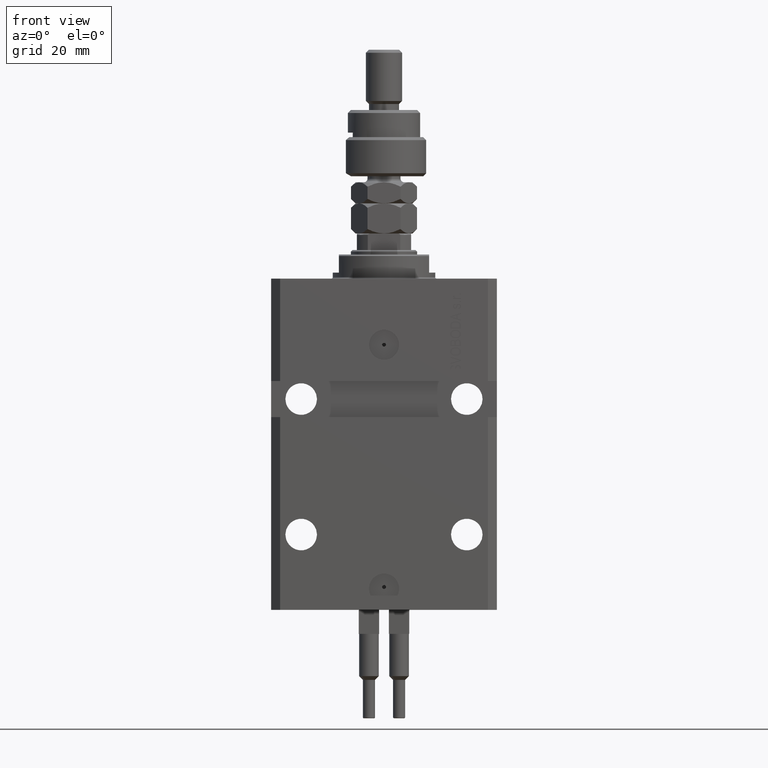
[diagram: clean part render]
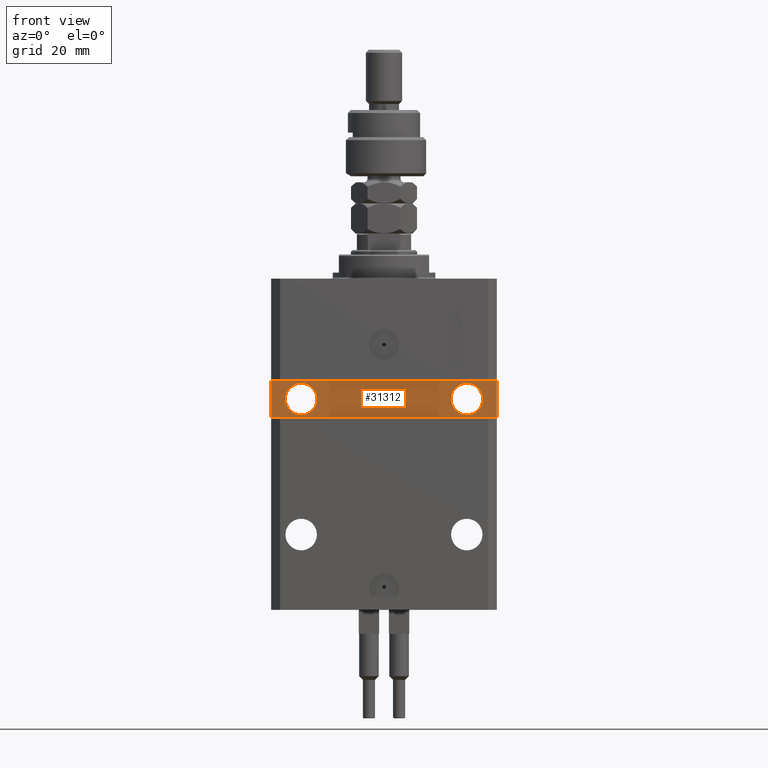
[diagram: same view with one face highlighted and labeled with its STEP entity id]
A machine part, front view. The second image highlights one B-rep face of the part: STEP entity #31312.
In plain terms, the highlighted planar face has unit normal (0, -1, 0).
Its self-contained STEP definition (entity closure, byte-faithful):
#1081 = DIRECTION ( 'NONE',  ( 9.251858538542974046E-17, -1.000000000000000000, 0.000000000000000000 ) ) ;
#1517 = EDGE_CURVE ( 'NONE', #9807, #25057, #38999, .T. ) ;
#2216 = DIRECTION ( 'NONE',  ( 1.000000000000000000, 0.000000000000000000, 0.000000000000000000 ) ) ;
#2295 = AXIS2_PLACEMENT_3D ( 'NONE', #20031, #27321, #47661 ) ;
#3354 = ORIENTED_EDGE ( 'NONE', *, *, #39210, .F. ) ;
#4444 = ORIENTED_EDGE ( 'NONE', *, *, #43168, .F. ) ;
#4843 = DIRECTION ( 'NONE',  ( 1.000000000000000000, 0.000000000000000000, 0.000000000000000000 ) ) ;
#5224 = CARTESIAN_POINT ( 'NONE',  ( -37.50000000000000000, -24.50000000000000000, -34.00000000000000000 ) ) ;
#5643 = CARTESIAN_POINT ( 'NONE',  ( 22.25000000000001421, -24.49999999999999289, -40.00000000000000000 ) ) ;
#5756 = PLANE ( 'NONE',  #18116 ) ;
#6018 = DIRECTION ( 'NONE',  ( 1.000000000000000000, 9.251858538542974046E-17, 0.000000000000000000 ) ) ;
#6065 = ORIENTED_EDGE ( 'NONE', *, *, #1517, .F. ) ;
#6592 = EDGE_LOOP ( 'NONE', ( #8016, #14987, #33930, #32475 ) ) ;
#8016 = ORIENTED_EDGE ( 'NONE', *, *, #18361, .T. ) ;
#8734 = DIRECTION ( 'NONE',  ( 0.000000000000000000, 0.000000000000000000, 1.000000000000000000 ) ) ;
#9807 = VERTEX_POINT ( 'NONE', #28659 ) ;
#10042 = CARTESIAN_POINT ( 'NONE',  ( -27.49999999999999289, -24.50000000000000000, -40.00000000000000711 ) ) ;
#10817 = ORIENTED_EDGE ( 'NONE', *, *, #30279, .F. ) ;
#11438 = CIRCLE ( 'NONE', #2295, 5.249999999999994671 ) ;
#12788 = LINE ( 'NONE', #5224, #17888 ) ;
#13834 = FACE_OUTER_BOUND ( 'NONE', #6592, .T. ) ;
#14083 = FACE_BOUND ( 'NONE', #43566, .T. ) ;
#14987 = ORIENTED_EDGE ( 'NONE', *, *, #32711, .T. ) ;
#15639 = CARTESIAN_POINT ( 'NONE',  ( -37.50000000000000000, -24.50000000000000000, -46.00000000000000000 ) ) ;
#16936 = DIRECTION ( 'NONE',  ( 1.000000000000000000, 9.251858538542972814E-17, -9.251858538542972814E-17 ) ) ;
#17440 = LINE ( 'NONE', #24754, #33685 ) ;
#17888 = VECTOR ( 'NONE', #48719, 1000.000000000000000 ) ;
#18116 = AXIS2_PLACEMENT_3D ( 'NONE', #32842, #1081, #6018 ) ;
#18315 = EDGE_CURVE ( 'NONE', #46887, #45648, #12788, .T. ) ;
#18361 = EDGE_CURVE ( 'NONE', #45648, #34250, #17440, .T. ) ;
#20031 = CARTESIAN_POINT ( 'NONE',  ( 27.50000000000000711, -24.49999999999999289, -40.00000000000000000 ) ) ;
#20163 = DIRECTION ( 'NONE',  ( 1.101411730780568590E-16, -1.000000000000000000, 0.000000000000000000 ) ) ;
#20602 = CARTESIAN_POINT ( 'NONE',  ( -37.50000000000000000, -24.50000000000000000, -34.00000000000000000 ) ) ;
#21555 = CARTESIAN_POINT ( 'NONE',  ( 37.49999999999999289, -24.49999999999999289, -46.00000000000000711 ) ) ;
#21648 = CIRCLE ( 'NONE', #36629, 5.249999999999994671 ) ;
#23901 = VERTEX_POINT ( 'NONE', #34801 ) ;
#24754 = CARTESIAN_POINT ( 'NONE',  ( -37.50000000000000000, -24.50000000000000000, -46.00000000000000000 ) ) ;
#25057 = VERTEX_POINT ( 'NONE', #40470 ) ;
#25138 = DIRECTION ( 'NONE',  ( 1.171720209325604191E-16, -1.000000000000000000, 0.000000000000000000 ) ) ;
#25847 = CARTESIAN_POINT ( 'NONE',  ( 37.49999999999999289, -24.49999999999999289, -33.99999999999997868 ) ) ;
#26106 = VERTEX_POINT ( 'NONE', #31824 ) ;
#27321 = DIRECTION ( 'NONE',  ( 1.171720209325604191E-16, -1.000000000000000000, 0.000000000000000000 ) ) ;
#28526 = LINE ( 'NONE', #47561, #33135 ) ;
#28659 = CARTESIAN_POINT ( 'NONE',  ( -22.24999999999999645, -24.50000000000000000, -40.00000000000000711 ) ) ;
#30010 = DIRECTION ( 'NONE',  ( -1.000000000000000000, -9.251858538542972814E-17, -2.775557561562891844E-16 ) ) ;
#30266 = LINE ( 'NONE', #25847, #39912 ) ;
#30279 = EDGE_CURVE ( 'NONE', #23901, #44809, #11438, .T. ) ;
#31312 = ADVANCED_FACE ( 'NONE', ( #49518, #14083, #13834 ), #5756, .T. ) ;
#31824 = CARTESIAN_POINT ( 'NONE',  ( 37.49999999999999289, -24.49999999999999289, -33.99999999999997868 ) ) ;
#32475 = ORIENTED_EDGE ( 'NONE', *, *, #18315, .T. ) ;
#32711 = EDGE_CURVE ( 'NONE', #34250, #26106, #28526, .T. ) ;
#32842 = CARTESIAN_POINT ( 'NONE',  ( 2.191435984341281325E-15, -24.49999999999999645, 0.000000000000000000 ) ) ;
#33135 = VECTOR ( 'NONE', #8734, 1000.000000000000000 ) ;
#33685 = VECTOR ( 'NONE', #16936, 1000.000000000000000 ) ;
#33930 = ORIENTED_EDGE ( 'NONE', *, *, #50542, .T. ) ;
#34250 = VERTEX_POINT ( 'NONE', #21555 ) ;
#34801 = CARTESIAN_POINT ( 'NONE',  ( 32.75000000000000000, -24.49999999999999289, -40.00000000000000000 ) ) ;
#35783 = DIRECTION ( 'NONE',  ( 1.000000000000000000, 0.000000000000000000, 0.000000000000000000 ) ) ;
#36629 = AXIS2_PLACEMENT_3D ( 'NONE', #37101, #25138, #4843 ) ;
#36764 = CIRCLE ( 'NONE', #39263, 5.249999999999997335 ) ;
#37101 = CARTESIAN_POINT ( 'NONE',  ( 27.50000000000000711, -24.49999999999999289, -40.00000000000000000 ) ) ;
#38999 = CIRCLE ( 'NONE', #44010, 5.249999999999997335 ) ;
#39210 = EDGE_CURVE ( 'NONE', #44809, #23901, #21648, .T. ) ;
#39263 = AXIS2_PLACEMENT_3D ( 'NONE', #10042, #49883, #2216 ) ;
#39912 = VECTOR ( 'NONE', #30010, 1000.000000000000000 ) ;
#40470 = CARTESIAN_POINT ( 'NONE',  ( -32.74999999999999289, -24.50000000000000000, -40.00000000000000711 ) ) ;
#41328 = EDGE_LOOP ( 'NONE', ( #10817, #3354 ) ) ;
#43168 = EDGE_CURVE ( 'NONE', #25057, #9807, #36764, .T. ) ;
#43566 = EDGE_LOOP ( 'NONE', ( #6065, #4444 ) ) ;
#43614 = CARTESIAN_POINT ( 'NONE',  ( -27.49999999999999289, -24.50000000000000000, -40.00000000000000711 ) ) ;
#44010 = AXIS2_PLACEMENT_3D ( 'NONE', #43614, #20163, #35783 ) ;
#44809 = VERTEX_POINT ( 'NONE', #5643 ) ;
#45648 = VERTEX_POINT ( 'NONE', #15639 ) ;
#46887 = VERTEX_POINT ( 'NONE', #20602 ) ;
#47561 = CARTESIAN_POINT ( 'NONE',  ( 37.49999999999999289, -24.49999999999999289, -46.00000000000000711 ) ) ;
#47661 = DIRECTION ( 'NONE',  ( 1.000000000000000000, 0.000000000000000000, 0.000000000000000000 ) ) ;
#48719 = DIRECTION ( 'NONE',  ( 0.000000000000000000, 0.000000000000000000, -1.000000000000000000 ) ) ;
#49518 = FACE_BOUND ( 'NONE', #41328, .T. ) ;
#49883 = DIRECTION ( 'NONE',  ( 1.101411730780568590E-16, -1.000000000000000000, 0.000000000000000000 ) ) ;
#50542 = EDGE_CURVE ( 'NONE', #26106, #46887, #30266, .T. ) ;